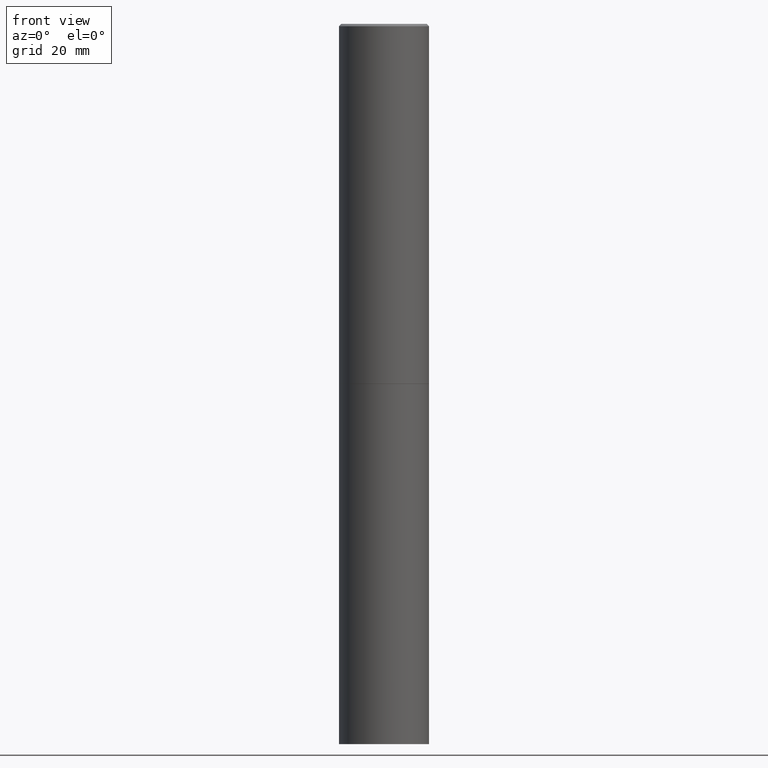
[diagram: clean part render]
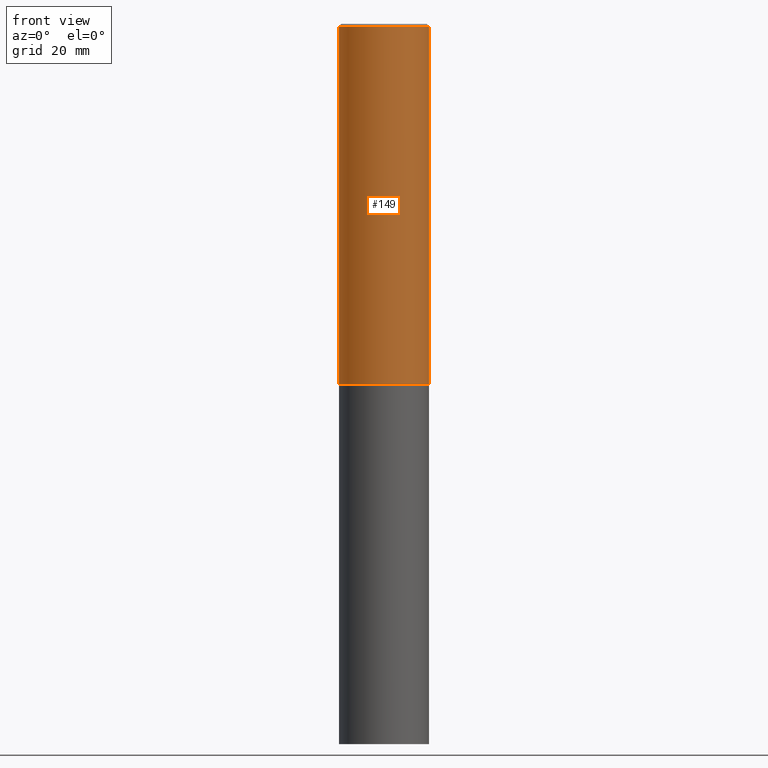
[diagram: same view with one face highlighted and labeled with its STEP entity id]
A machine part, front view. The second image highlights one B-rep face of the part: STEP entity #149.
In plain terms, the highlighted cylindrical surface (partial cylindrical patch) has radius 9.525 mm, axis along (-0, 0, 1).
Its self-contained STEP definition (entity closure, byte-faithful):
#8 = VECTOR ( 'NONE', #314, 39.37007874015748143 ) ;
#47 = CARTESIAN_POINT ( 'NONE',  ( 0.3749999999999998335, -2.618611004132348439E-15, 1.828566290923475082E-29 ) ) ;
#55 = CIRCLE ( 'NONE', #264, 0.3750000000000000555 ) ;
#56 = VERTEX_POINT ( 'NONE', #124 ) ;
#57 = CARTESIAN_POINT ( 'NONE',  ( 7.333960949749226429E-29, -1.047095253519059492E-14, -2.999000000000000554 ) ) ;
#82 = DIRECTION ( 'NONE',  ( -2.445468806185136877E-29, 3.491481338843145188E-15, 1.000000000000000000 ) ) ;
#86 = ORIENTED_EDGE ( 'NONE', *, *, #302, .T. ) ;
#97 = VERTEX_POINT ( 'NONE', #235 ) ;
#98 = CIRCLE ( 'NONE', #207, 0.3749999999999996669 ) ;
#100 = DIRECTION ( 'NONE',  ( 1.000000000000000000, -6.982962677686265922E-15, 4.876176775795935793E-29 ) ) ;
#102 = DIRECTION ( 'NONE',  ( -2.445468806185136597E-29, 3.491481338843145583E-15, 1.000000000000000000 ) ) ;
#107 = LINE ( 'NONE', #110, #8 ) ;
#109 = AXIS2_PLACEMENT_3D ( 'NONE', #305, #301, #100 ) ;
#110 = CARTESIAN_POINT ( 'NONE',  ( -0.3749999999999998335, 2.664535259100374514E-15, -1.844600658845588757E-29 ) ) ;
#124 = CARTESIAN_POINT ( 'NONE',  ( 0.3750000000000000555, -1.308956353932294494E-14, -2.999000000000000554 ) ) ;
#147 = ORIENTED_EDGE ( 'NONE', *, *, #234, .F. ) ;
#148 = ORIENTED_EDGE ( 'NONE', *, *, #341, .F. ) ;
#149 = ADVANCED_FACE ( 'NONE', ( #180 ), #273, .T. ) ;
#156 = CARTESIAN_POINT ( 'NONE',  ( -0.3749999999999999445, -2.605855821883350653E-15, -2.999000000000000554 ) ) ;
#167 = DIRECTION ( 'NONE',  ( 1.000000000000000000, -6.982962677686266711E-15, 0.000000000000000000 ) ) ;
#180 = FACE_OUTER_BOUND ( 'NONE', #283, .T. ) ;
#181 = VECTOR ( 'NONE', #82, 39.37007874015748143 ) ;
#183 = DIRECTION ( 'NONE',  ( 1.000000000000000000, -6.982962677686266711E-15, 0.000000000000000000 ) ) ;
#207 = AXIS2_PLACEMENT_3D ( 'NONE', #211, #102, #183 ) ;
#211 = CARTESIAN_POINT ( 'NONE',  ( 4.890937612370294178E-31, -6.982962677686321191E-17, -0.02000000000000008715 ) ) ;
#228 = VERTEX_POINT ( 'NONE', #359 ) ;
#234 = EDGE_CURVE ( 'NONE', #228, #97, #98, .T. ) ;
#235 = CARTESIAN_POINT ( 'NONE',  ( 0.3749999999999996669, -2.642516375941185662E-15, -0.02000000000000008715 ) ) ;
#264 = AXIS2_PLACEMENT_3D ( 'NONE', #57, #276, #167 ) ;
#273 = CYLINDRICAL_SURFACE ( 'NONE', #109, 0.3749999999999998335 ) ;
#276 = DIRECTION ( 'NONE',  ( -2.445468806185136597E-29, 3.491481338843145583E-15, 1.000000000000000000 ) ) ;
#283 = EDGE_LOOP ( 'NONE', ( #148, #324, #86, #147 ) ) ;
#301 = DIRECTION ( 'NONE',  ( -2.445468806185136597E-29, 3.491481338843145583E-15, 1.000000000000000000 ) ) ;
#302 = EDGE_CURVE ( 'NONE', #56, #97, #338, .T. ) ;
#305 = CARTESIAN_POINT ( 'NONE',  ( 0.000000000000000000, 0.000000000000000000, 0.000000000000000000 ) ) ;
#314 = DIRECTION ( 'NONE',  ( -2.445468806185136877E-29, 3.491481338843145188E-15, 1.000000000000000000 ) ) ;
#324 = ORIENTED_EDGE ( 'NONE', *, *, #353, .T. ) ;
#338 = LINE ( 'NONE', #47, #181 ) ;
#341 = EDGE_CURVE ( 'NONE', #346, #228, #107, .T. ) ;
#346 = VERTEX_POINT ( 'NONE', #156 ) ;
#353 = EDGE_CURVE ( 'NONE', #346, #56, #55, .T. ) ;
#359 = CARTESIAN_POINT ( 'NONE',  ( -0.3749999999999996669, 2.548781377355484352E-15, -0.02000000000000008715 ) ) ;